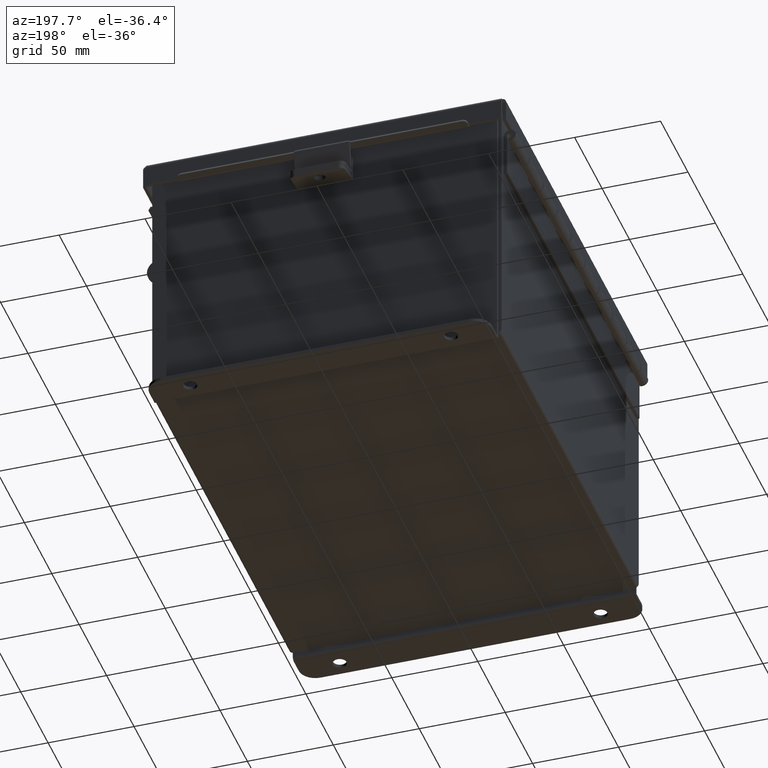
[diagram: clean part render]
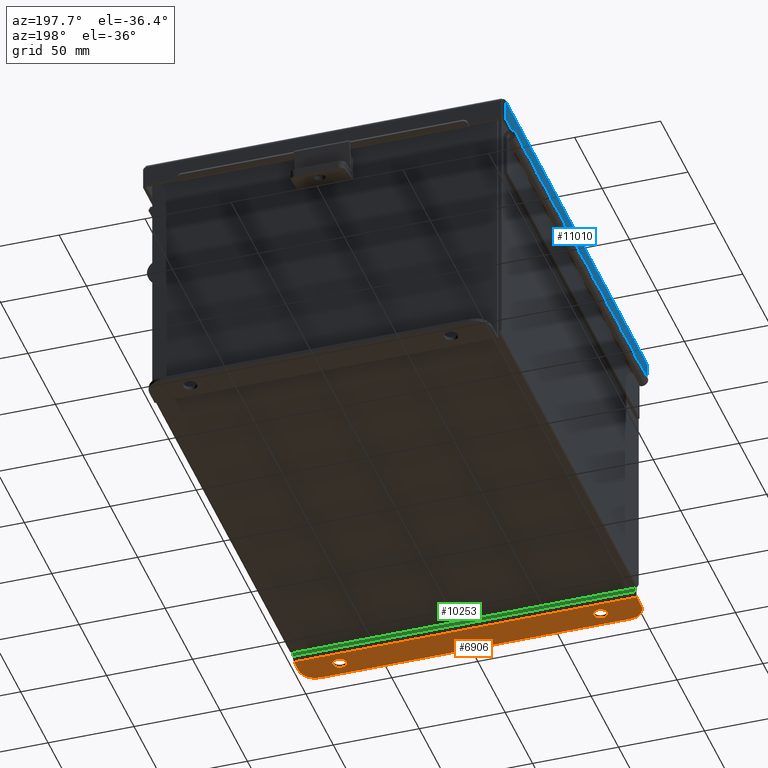
[diagram: same view with three faces highlighted in distinct colors, each labeled with its STEP entity id]
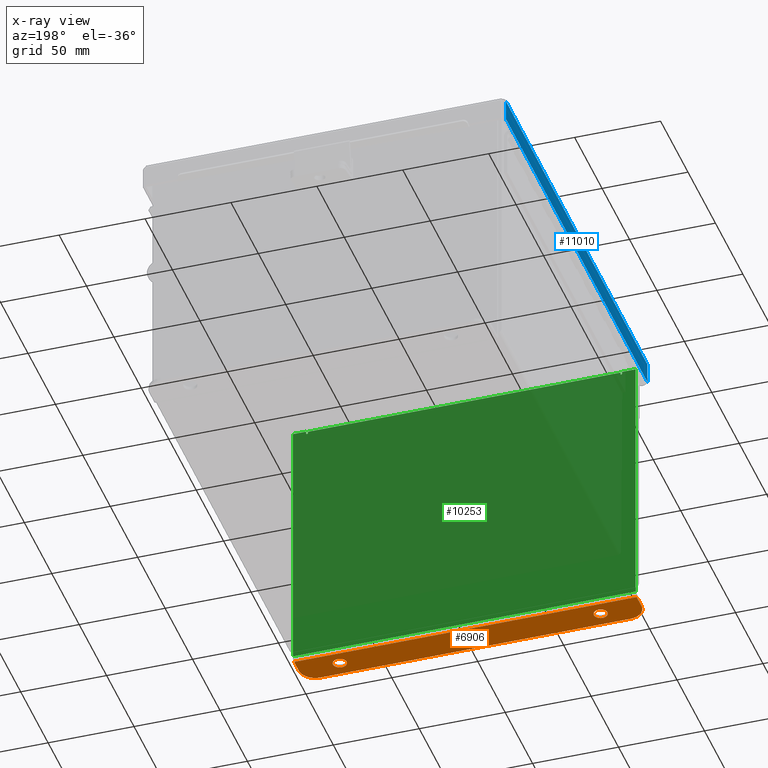
[diagram: x-ray of the same camera — body ghosted, the three highlighted faces saturated]
A machine part, auxiliary view with three faces highlighted in distinct colors.
The next image is the same camera in x-ray (body ghosted, the three faces saturated) — at least one of them is partly hidden behind the body in this view.
Their STEP definitions:

[orange] entity #6906 — the highlighted planar face has unit normal (0, -0, 1).
#19 = EDGE_CURVE ( 'NONE', #3000, #13862, #12096, .T. ) ;
#109 = ORIENTED_EDGE ( 'NONE', *, *, #398, .T. ) ;
#305 = AXIS2_PLACEMENT_3D ( 'NONE', #8198, #11722, #3020 ) ;
#398 = EDGE_CURVE ( 'NONE', #6557, #16007, #951, .T. ) ;
#450 = DIRECTION ( 'NONE',  ( 0.0000000000000000000, 1.000000000000000000, -3.502369222646487000E-015 ) ) ;
#629 = FACE_BOUND ( 'NONE', #6008, .T. ) ;
#871 = CARTESIAN_POINT ( 'NONE',  ( 0.0000000000000000000, -1.092739197465705300E-014, -3.187000000000000300 ) ) ;
#951 = CIRCLE ( 'NONE', #305, 0.3750000000000000600 ) ;
#1047 = FACE_BOUND ( 'NONE', #11344, .T. ) ;
#1088 = DIRECTION ( 'NONE',  ( 0.0000000000000000000, -3.362274453740631800E-015, -1.000000000000000000 ) ) ;
#1296 = CARTESIAN_POINT ( 'NONE',  ( 2.987799999999998700, 0.3627999999999997300, -3.187000000000001200 ) ) ;
#1355 = VECTOR ( 'NONE', #9045, 39.37007874015748100 ) ;
#1389 = CIRCLE ( 'NONE', #9067, 0.1560000000000001900 ) ;
#1468 = ORIENTED_EDGE ( 'NONE', *, *, #2308, .T. ) ;
#1633 = DIRECTION ( 'NONE',  ( -4.919856193148104900E-031, -1.000000000000000000, 3.702694488566362300E-015 ) ) ;
#1635 = VECTOR ( 'NONE', #6424, 39.37007874015748100 ) ;
#1965 = VECTOR ( 'NONE', #14813, 39.37007874015748100 ) ;
#2087 = CARTESIAN_POINT ( 'NONE',  ( -3.925300000000000900, -1.202013117212275700E-014, -3.187000000000000300 ) ) ;
#2308 = EDGE_CURVE ( 'NONE', #7686, #14004, #10499, .T. ) ;
#2520 = VERTEX_POINT ( 'NONE', #12690 ) ;
#2575 = DIRECTION ( 'NONE',  ( 0.0000000000000000000, 1.000000000000000000, -3.502369222646487000E-015 ) ) ;
#2925 = CIRCLE ( 'NONE', #8851, 0.1560000000000001900 ) ;
#3000 = VERTEX_POINT ( 'NONE', #11953 ) ;
#3020 = DIRECTION ( 'NONE',  ( 0.0000000000000000000, -1.000000000000000000, 4.370956789862820400E-015 ) ) ;
#3149 = CARTESIAN_POINT ( 'NONE',  ( -3.550300000000000500, 0.7378000000000000100, -3.187000000000002900 ) ) ;
#3322 = CARTESIAN_POINT ( 'NONE',  ( -2.987800000000000900, 0.3627999999999997300, -3.187000000000001200 ) ) ;
#3398 = EDGE_CURVE ( 'NONE', #10122, #2520, #2925, .T. ) ;
#3753 = CARTESIAN_POINT ( 'NONE',  ( 2.987799999999998700, 0.3627999999999997300, -3.187000000000001200 ) ) ;
#4162 = VERTEX_POINT ( 'NONE', #14536 ) ;
#4353 = EDGE_CURVE ( 'NONE', #14004, #6557, #8275, .T. ) ;
#4494 = VECTOR ( 'NONE', #8768, 39.37007874015748100 ) ;
#4535 = DIRECTION ( 'NONE',  ( -0.0000000000000000000, -3.702694488566362300E-015, -1.000000000000000000 ) ) ;
#4623 = DIRECTION ( 'NONE',  ( 0.0000000000000000000, 1.000000000000000000, -3.502369222646487000E-015 ) ) ;
#4646 = EDGE_LOOP ( 'NONE', ( #10128, #1468, #13133, #109, #9670, #10876 ) ) ;
#5415 = DIRECTION ( 'NONE',  ( 0.0000000000000000000, 3.702694488566362300E-015, 1.000000000000000000 ) ) ;
#5801 = PLANE ( 'NONE',  #10982 ) ;
#6008 = EDGE_LOOP ( 'NONE', ( #12423, #6381 ) ) ;
#6360 = CARTESIAN_POINT ( 'NONE',  ( -3.925300000000000900, 0.3627999999999997300, -3.187000000000001200 ) ) ;
#6381 = ORIENTED_EDGE ( 'NONE', *, *, #9598, .F. ) ;
#6424 = DIRECTION ( 'NONE',  ( -4.919856193148104900E-031, -1.000000000000000000, 3.702694488566362300E-015 ) ) ;
#6557 = VERTEX_POINT ( 'NONE', #14460 ) ;
#6906 = ADVANCED_FACE ( 'NONE', ( #1047, #629, #13772 ), #5801, .F. ) ;
#7464 = VERTEX_POINT ( 'NONE', #10998 ) ;
#7686 = VERTEX_POINT ( 'NONE', #6360 ) ;
#7704 = EDGE_CURVE ( 'NONE', #16007, #7464, #15561, .T. ) ;
#8198 = CARTESIAN_POINT ( 'NONE',  ( 3.550299999999998700, 0.3627999999999997300, -3.187000000000001200 ) ) ;
#8275 = LINE ( 'NONE', #9403, #4494 ) ;
#8579 = DIRECTION ( 'NONE',  ( 0.0000000000000000000, -3.362274453740631800E-015, -1.000000000000000000 ) ) ;
#8743 = LINE ( 'NONE', #2087, #1965 ) ;
#8768 = DIRECTION ( 'NONE',  ( 1.000000000000000000, 4.910036603141682400E-031, 0.0000000000000000000 ) ) ;
#8851 = AXIS2_PLACEMENT_3D ( 'NONE', #3753, #1088, #15812 ) ;
#8940 = DIRECTION ( 'NONE',  ( 0.0000000000000000000, -1.000000000000000000, 4.370956789862820400E-015 ) ) ;
#8983 = CARTESIAN_POINT ( 'NONE',  ( 3.925299999999998700, -1.092739197465705300E-014, -3.187000000000000300 ) ) ;
#9045 = DIRECTION ( 'NONE',  ( 1.000000000000000000, 4.910036603141682400E-031, -0.0000000000000000000 ) ) ;
#9067 = AXIS2_PLACEMENT_3D ( 'NONE', #3322, #12204, #4623 ) ;
#9175 = AXIS2_PLACEMENT_3D ( 'NONE', #1296, #10182, #2575 ) ;
#9403 = CARTESIAN_POINT ( 'NONE',  ( -2.035385365534024800E-024, 0.7378000000000000100, -3.187000000000002900 ) ) ;
#9598 = EDGE_CURVE ( 'NONE', #2520, #10122, #9758, .T. ) ;
#9670 = ORIENTED_EDGE ( 'NONE', *, *, #7704, .T. ) ;
#9758 = CIRCLE ( 'NONE', #9175, 0.1560000000000001900 ) ;
#10122 = VERTEX_POINT ( 'NONE', #13507 ) ;
#10128 = ORIENTED_EDGE ( 'NONE', *, *, #14673, .T. ) ;
#10131 = CARTESIAN_POINT ( 'NONE',  ( -3.550300000000000500, 0.3627999999999997300, -3.187000000000001200 ) ) ;
#10182 = DIRECTION ( 'NONE',  ( 0.0000000000000000000, -3.362274453740631800E-015, -1.000000000000000000 ) ) ;
#10241 = CARTESIAN_POINT ( 'NONE',  ( 3.925299999999998700, 0.3627999999999997300, -3.187000000000001200 ) ) ;
#10438 = EDGE_CURVE ( 'NONE', #13862, #3000, #1389, .T. ) ;
#10499 = CIRCLE ( 'NONE', #11780, 0.3750000000000000600 ) ;
#10876 = ORIENTED_EDGE ( 'NONE', *, *, #11421, .F. ) ;
#10982 = AXIS2_PLACEMENT_3D ( 'NONE', #871, #5415, #1633 ) ;
#10998 = CARTESIAN_POINT ( 'NONE',  ( 3.925299999999998700, 0.01300000000000010700, -3.187000000000000300 ) ) ;
#11344 = EDGE_LOOP ( 'NONE', ( #13375, #15891 ) ) ;
#11421 = EDGE_CURVE ( 'NONE', #4162, #7464, #14876, .T. ) ;
#11722 = DIRECTION ( 'NONE',  ( -0.0000000000000000000, -3.702694488566362300E-015, -1.000000000000000000 ) ) ;
#11780 = AXIS2_PLACEMENT_3D ( 'NONE', #10131, #4535, #8940 ) ;
#11953 = CARTESIAN_POINT ( 'NONE',  ( -2.987800000000000900, 0.2067999999999996000, -3.187000000000000700 ) ) ;
#12096 = CIRCLE ( 'NONE', #13747, 0.1560000000000001900 ) ;
#12204 = DIRECTION ( 'NONE',  ( 0.0000000000000000000, -3.362274453740631800E-015, -1.000000000000000000 ) ) ;
#12423 = ORIENTED_EDGE ( 'NONE', *, *, #3398, .F. ) ;
#12690 = CARTESIAN_POINT ( 'NONE',  ( 2.987799999999998700, 0.2067999999999996000, -3.187000000000000700 ) ) ;
#13093 = CARTESIAN_POINT ( 'NONE',  ( -2.987800000000000900, 0.5187999999999999300, -3.187000000000001600 ) ) ;
#13133 = ORIENTED_EDGE ( 'NONE', *, *, #4353, .T. ) ;
#13375 = ORIENTED_EDGE ( 'NONE', *, *, #10438, .F. ) ;
#13507 = CARTESIAN_POINT ( 'NONE',  ( 2.987799999999998700, 0.5187999999999999300, -3.187000000000001600 ) ) ;
#13747 = AXIS2_PLACEMENT_3D ( 'NONE', #14829, #8579, #450 ) ;
#13772 = FACE_OUTER_BOUND ( 'NONE', #4646, .T. ) ;
#13862 = VERTEX_POINT ( 'NONE', #13093 ) ;
#14004 = VERTEX_POINT ( 'NONE', #3149 ) ;
#14138 = CARTESIAN_POINT ( 'NONE',  ( 3.925299999999998700, 0.01300000000000120000, -3.187000000000000300 ) ) ;
#14460 = CARTESIAN_POINT ( 'NONE',  ( 3.550299999999998700, 0.7378000000000000100, -3.187000000000002900 ) ) ;
#14536 = CARTESIAN_POINT ( 'NONE',  ( -3.925300000000000900, 0.01300000000000010700, -3.187000000000000300 ) ) ;
#14673 = EDGE_CURVE ( 'NONE', #4162, #7686, #8743, .T. ) ;
#14813 = DIRECTION ( 'NONE',  ( 4.919856193148104900E-031, 1.000000000000000000, -3.702694488566362300E-015 ) ) ;
#14829 = CARTESIAN_POINT ( 'NONE',  ( -2.987800000000000900, 0.3627999999999997300, -3.187000000000001200 ) ) ;
#14876 = LINE ( 'NONE', #14138, #1355 ) ;
#15561 = LINE ( 'NONE', #8983, #1635 ) ;
#15812 = DIRECTION ( 'NONE',  ( 0.0000000000000000000, 1.000000000000000000, -3.502369222646487000E-015 ) ) ;
#15891 = ORIENTED_EDGE ( 'NONE', *, *, #19, .F. ) ;
#16007 = VERTEX_POINT ( 'NONE', #10241 ) ;

[blue] entity #11010 — the highlighted planar face has unit normal (1, -0, 0).
#419 = AXIS2_PLACEMENT_3D ( 'NONE', #15827, #10756, #3142 ) ;
#1876 = PLANE ( 'NONE',  #419 ) ;
#2239 = CARTESIAN_POINT ( 'NONE',  ( 4.156250000000002700, -5.074478932188135600, 0.4872999999999997300 ) ) ;
#2701 = EDGE_LOOP ( 'NONE', ( #5383, #12702, #9073, #8243 ) ) ;
#3021 = CARTESIAN_POINT ( 'NONE',  ( 4.156250000000000900, 5.074478932188133800, -1.424100231638560100E-014 ) ) ;
#3142 = DIRECTION ( 'NONE',  ( 3.363654414526078100E-015, 0.0000000000000000000, 1.000000000000000000 ) ) ;
#3155 = FACE_OUTER_BOUND ( 'NONE', #2701, .T. ) ;
#3964 = CARTESIAN_POINT ( 'NONE',  ( 4.156250000000002700, 5.074478932188133800, 0.4872999999999997300 ) ) ;
#4355 = CARTESIAN_POINT ( 'NONE',  ( 4.156250000000000900, -5.074478932188135600, -2.512649847650986200E-016 ) ) ;
#4540 = VECTOR ( 'NONE', #5647, 39.37007874015748100 ) ;
#4651 = DIRECTION ( 'NONE',  ( 0.0000000000000000000, -1.000000000000000000, 0.0000000000000000000 ) ) ;
#5383 = ORIENTED_EDGE ( 'NONE', *, *, #15184, .F. ) ;
#5519 = EDGE_CURVE ( 'NONE', #6325, #7500, #6261, .T. ) ;
#5647 = DIRECTION ( 'NONE',  ( 3.363654414526078100E-015, -0.0000000000000000000, 1.000000000000000000 ) ) ;
#6261 = LINE ( 'NONE', #8116, #9239 ) ;
#6325 = VERTEX_POINT ( 'NONE', #3964 ) ;
#7014 = EDGE_CURVE ( 'NONE', #12463, #6325, #16375, .T. ) ;
#7500 = VERTEX_POINT ( 'NONE', #2239 ) ;
#8116 = CARTESIAN_POINT ( 'NONE',  ( 4.156250000000002700, 0.0000000000000000000, 0.4872999999999997300 ) ) ;
#8243 = ORIENTED_EDGE ( 'NONE', *, *, #15219, .F. ) ;
#8312 = LINE ( 'NONE', #4355, #4540 ) ;
#8682 = VERTEX_POINT ( 'NONE', #8727 ) ;
#8727 = CARTESIAN_POINT ( 'NONE',  ( 4.156250000000000900, -5.074478932188135600, 0.01299999999999958700 ) ) ;
#9073 = ORIENTED_EDGE ( 'NONE', *, *, #5519, .T. ) ;
#9239 = VECTOR ( 'NONE', #4651, 39.37007874015748100 ) ;
#9622 = VECTOR ( 'NONE', #13276, 39.37007874015748100 ) ;
#10756 = DIRECTION ( 'NONE',  ( -1.000000000000000000, 0.0000000000000000000, 3.363654414526078100E-015 ) ) ;
#11010 = ADVANCED_FACE ( 'NONE', ( #3155 ), #1876, .F. ) ;
#12072 = VECTOR ( 'NONE', #13140, 39.37007874015748100 ) ;
#12199 = CARTESIAN_POINT ( 'NONE',  ( 4.156250000000000900, 5.074478932188133800, 0.01299999999999932100 ) ) ;
#12463 = VERTEX_POINT ( 'NONE', #12199 ) ;
#12702 = ORIENTED_EDGE ( 'NONE', *, *, #7014, .T. ) ;
#13140 = DIRECTION ( 'NONE',  ( 1.782107648718160300E-031, -1.000000000000000000, 5.298129442257967200E-017 ) ) ;
#13276 = DIRECTION ( 'NONE',  ( 3.363654414526078100E-015, 0.0000000000000000000, 1.000000000000000000 ) ) ;
#13681 = LINE ( 'NONE', #15650, #12072 ) ;
#15184 = EDGE_CURVE ( 'NONE', #12463, #8682, #13681, .T. ) ;
#15219 = EDGE_CURVE ( 'NONE', #8682, #7500, #8312, .T. ) ;
#15650 = CARTESIAN_POINT ( 'NONE',  ( 4.156250000000000900, -5.156250000000000900, 0.01299999999999986400 ) ) ;
#15827 = CARTESIAN_POINT ( 'NONE',  ( 4.156250000000000900, 0.0000000000000000000, -1.424100231638560100E-014 ) ) ;
#16375 = LINE ( 'NONE', #3021, #9622 ) ;

[green] entity #10253 — the highlighted planar face has unit normal (-0, 1, -0).
#60 = CARTESIAN_POINT ( 'NONE',  ( 3.582299999999998700, -0.07469999999999142600, 2.912299999999999200 ) ) ;
#96 = DIRECTION ( 'NONE',  ( 0.0000000000000000000, 0.0000000000000000000, -1.000000000000000000 ) ) ;
#586 = VERTEX_POINT ( 'NONE', #9967 ) ;
#820 = ORIENTED_EDGE ( 'NONE', *, *, #13272, .F. ) ;
#964 = LINE ( 'NONE', #11852, #4357 ) ;
#1034 = DIRECTION ( 'NONE',  ( 1.000000000000000000, 4.910036603141682400E-031, -0.0000000000000000000 ) ) ;
#1177 = DIRECTION ( 'NONE',  ( 0.0000000000000000000, 0.0000000000000000000, 1.000000000000000000 ) ) ;
#1280 = CARTESIAN_POINT ( 'NONE',  ( -3.619650000000000900, -0.07469999999999907300, 2.925299999999998200 ) ) ;
#1329 = AXIS2_PLACEMENT_3D ( 'NONE', #15339, #7740, #96 ) ;
#1471 = DIRECTION ( 'NONE',  ( -4.910036603141682400E-031, -1.000000000000000000, 0.0000000000000000000 ) ) ;
#1599 = VERTEX_POINT ( 'NONE', #6955 ) ;
#1713 = DIRECTION ( 'NONE',  ( 1.000000000000000000, 4.910036603141682400E-031, 0.0000000000000000000 ) ) ;
#1740 = VERTEX_POINT ( 'NONE', #4495 ) ;
#1744 = ORIENTED_EDGE ( 'NONE', *, *, #4427, .F. ) ;
#2154 = LINE ( 'NONE', #3910, #4746 ) ;
#2645 = CARTESIAN_POINT ( 'NONE',  ( -3.925300000000000900, -0.07470000000000015500, -3.099299999999999900 ) ) ;
#2765 = VERTEX_POINT ( 'NONE', #2645 ) ;
#3277 = ORIENTED_EDGE ( 'NONE', *, *, #4368, .F. ) ;
#3298 = CARTESIAN_POINT ( 'NONE',  ( -3.619650000000000900, -0.07470000000000015500, 2.874949999999999200 ) ) ;
#3300 = EDGE_CURVE ( 'NONE', #1740, #3737, #11271, .T. ) ;
#3388 = LINE ( 'NONE', #13041, #4518 ) ;
#3521 = VERTEX_POINT ( 'NONE', #8371 ) ;
#3539 = ORIENTED_EDGE ( 'NONE', *, *, #10280, .T. ) ;
#3666 = ORIENTED_EDGE ( 'NONE', *, *, #14823, .F. ) ;
#3718 = AXIS2_PLACEMENT_3D ( 'NONE', #5482, #1471, #4773 ) ;
#3736 = CARTESIAN_POINT ( 'NONE',  ( -3.582300000000000900, -0.07470000000000015500, 2.912299999999998300 ) ) ;
#3737 = VERTEX_POINT ( 'NONE', #7988 ) ;
#3782 = FACE_OUTER_BOUND ( 'NONE', #12497, .T. ) ;
#3910 = CARTESIAN_POINT ( 'NONE',  ( 3.582299999999998700, -0.07469999999999033000, 2.912299999999999200 ) ) ;
#3956 = VERTEX_POINT ( 'NONE', #3298 ) ;
#4107 = PLANE ( 'NONE',  #9401 ) ;
#4297 = CARTESIAN_POINT ( 'NONE',  ( 3.619649999999998700, -0.07469999999999033000, 2.874949999999999200 ) ) ;
#4357 = VECTOR ( 'NONE', #1713, 39.37007874015748100 ) ;
#4368 = EDGE_CURVE ( 'NONE', #1599, #3521, #14226, .T. ) ;
#4391 = CARTESIAN_POINT ( 'NONE',  ( 3.619649999999999600, -0.07469999999999142600, 2.925300000000000500 ) ) ;
#4427 = EDGE_CURVE ( 'NONE', #5303, #9570, #10435, .T. ) ;
#4495 = CARTESIAN_POINT ( 'NONE',  ( 3.582299999999998700, -0.07469999999999142600, 2.874949999999999200 ) ) ;
#4518 = VECTOR ( 'NONE', #9202, 39.37007874015748100 ) ;
#4746 = VECTOR ( 'NONE', #12784, 39.37007874015748100 ) ;
#4773 = DIRECTION ( 'NONE',  ( 0.0000000000000000000, 0.0000000000000000000, -1.000000000000000000 ) ) ;
#4938 = VECTOR ( 'NONE', #14408, 39.37007874015748100 ) ;
#5087 = CARTESIAN_POINT ( 'NONE',  ( 3.925299999999998700, -0.07469999999999142600, 2.925300000000001800 ) ) ;
#5303 = VERTEX_POINT ( 'NONE', #10331 ) ;
#5482 = CARTESIAN_POINT ( 'NONE',  ( 3.600974999999998700, -0.07469999999999033000, 2.874949999999999200 ) ) ;
#6227 = VECTOR ( 'NONE', #1177, 39.37007874015748100 ) ;
#6303 = VERTEX_POINT ( 'NONE', #60 ) ;
#6685 = CARTESIAN_POINT ( 'NONE',  ( 0.0000000000000000000, -0.07470000000000015500, 0.0000000000000000000 ) ) ;
#6800 = ORIENTED_EDGE ( 'NONE', *, *, #7640, .F. ) ;
#6955 = CARTESIAN_POINT ( 'NONE',  ( 3.925299999999998700, -0.07469999999999142600, 2.925300000000001800 ) ) ;
#7156 = LINE ( 'NONE', #9980, #7544 ) ;
#7544 = VECTOR ( 'NONE', #1034, 39.37007874015748100 ) ;
#7640 = EDGE_CURVE ( 'NONE', #2765, #586, #16357, .T. ) ;
#7717 = CIRCLE ( 'NONE', #1329, 0.01867500000000003900 ) ;
#7740 = DIRECTION ( 'NONE',  ( -4.910036603141682400E-031, -1.000000000000000000, 0.0000000000000000000 ) ) ;
#7968 = DIRECTION ( 'NONE',  ( 0.0000000000000000000, 0.0000000000000000000, -1.000000000000000000 ) ) ;
#7988 = CARTESIAN_POINT ( 'NONE',  ( 3.619649999999998700, -0.07469999999999142600, 2.874949999999999200 ) ) ;
#8253 = ORIENTED_EDGE ( 'NONE', *, *, #15610, .F. ) ;
#8283 = VECTOR ( 'NONE', #15574, 39.37007874015748100 ) ;
#8371 = CARTESIAN_POINT ( 'NONE',  ( 3.925299999999998700, -0.07470000000000015500, -3.099299999999999900 ) ) ;
#8539 = DIRECTION ( 'NONE',  ( 0.0000000000000000000, 0.0000000000000000000, -1.000000000000000000 ) ) ;
#9202 = DIRECTION ( 'NONE',  ( 1.000000000000000000, 4.910036603141682400E-031, -0.0000000000000000000 ) ) ;
#9238 = CARTESIAN_POINT ( 'NONE',  ( -3.619650000000000900, -0.07470000000000015500, 2.925299999999998200 ) ) ;
#9240 = CARTESIAN_POINT ( 'NONE',  ( -3.925300000000000900, -0.07470000000000015500, 2.925299999999999600 ) ) ;
#9343 = VECTOR ( 'NONE', #10171, 39.37007874015748100 ) ;
#9401 = AXIS2_PLACEMENT_3D ( 'NONE', #6685, #15576, #7968 ) ;
#9570 = VERTEX_POINT ( 'NONE', #3736 ) ;
#9967 = CARTESIAN_POINT ( 'NONE',  ( -3.925300000000000900, -0.07470000000000015500, 2.925299999999999600 ) ) ;
#9980 = CARTESIAN_POINT ( 'NONE',  ( -3.582300000000000900, -0.07469999999999907300, 2.912299999999998300 ) ) ;
#10045 = VECTOR ( 'NONE', #13572, 39.37007874015748100 ) ;
#10056 = CARTESIAN_POINT ( 'NONE',  ( -3.925300000000000900, -0.07470000000000015500, 2.925299999999999600 ) ) ;
#10171 = DIRECTION ( 'NONE',  ( 0.0000000000000000000, 1.186875369640613200E-014, -1.000000000000000000 ) ) ;
#10253 = ADVANCED_FACE ( 'NONE', ( #3782 ), #4107, .T. ) ;
#10280 = EDGE_CURVE ( 'NONE', #2765, #3521, #3388, .T. ) ;
#10331 = CARTESIAN_POINT ( 'NONE',  ( -3.582300000000000900, -0.07470000000000015500, 2.874949999999999200 ) ) ;
#10435 = LINE ( 'NONE', #13927, #10045 ) ;
#10827 = VECTOR ( 'NONE', #8539, 39.37007874015748100 ) ;
#10918 = EDGE_CURVE ( 'NONE', #586, #12260, #964, .T. ) ;
#11271 = CIRCLE ( 'NONE', #3718, 0.01867500000000003900 ) ;
#11852 = CARTESIAN_POINT ( 'NONE',  ( -3.925300000000000900, -0.07470000000000015500, 2.925299999999999600 ) ) ;
#12048 = EDGE_CURVE ( 'NONE', #12260, #3956, #16082, .T. ) ;
#12260 = VERTEX_POINT ( 'NONE', #9238 ) ;
#12476 = LINE ( 'NONE', #4297, #4938 ) ;
#12497 = EDGE_LOOP ( 'NONE', ( #8253, #12816, #15898, #6800, #3539, #3277, #820, #12696, #15614, #12700, #3666, #1744 ) ) ;
#12696 = ORIENTED_EDGE ( 'NONE', *, *, #15202, .F. ) ;
#12700 = ORIENTED_EDGE ( 'NONE', *, *, #14967, .F. ) ;
#12784 = DIRECTION ( 'NONE',  ( 0.0000000000000000000, 0.0000000000000000000, -1.000000000000000000 ) ) ;
#12816 = ORIENTED_EDGE ( 'NONE', *, *, #12048, .F. ) ;
#13041 = CARTESIAN_POINT ( 'NONE',  ( -3.925300000000000900, -0.07470000000000015500, -3.099299999999999900 ) ) ;
#13272 = EDGE_CURVE ( 'NONE', #14581, #1599, #15037, .T. ) ;
#13572 = DIRECTION ( 'NONE',  ( 0.0000000000000000000, 0.0000000000000000000, 1.000000000000000000 ) ) ;
#13927 = CARTESIAN_POINT ( 'NONE',  ( -3.582300000000000900, -0.07469999999999907300, 2.874949999999999200 ) ) ;
#14226 = LINE ( 'NONE', #5087, #10827 ) ;
#14408 = DIRECTION ( 'NONE',  ( 2.170286390199978800E-014, -1.186875369640613200E-014, 1.000000000000000000 ) ) ;
#14581 = VERTEX_POINT ( 'NONE', #4391 ) ;
#14823 = EDGE_CURVE ( 'NONE', #9570, #6303, #7156, .T. ) ;
#14967 = EDGE_CURVE ( 'NONE', #6303, #1740, #2154, .T. ) ;
#15037 = LINE ( 'NONE', #9240, #8283 ) ;
#15202 = EDGE_CURVE ( 'NONE', #3737, #14581, #12476, .T. ) ;
#15339 = CARTESIAN_POINT ( 'NONE',  ( -3.600975000000000900, -0.07469999999999907300, 2.874949999999999200 ) ) ;
#15574 = DIRECTION ( 'NONE',  ( 1.000000000000000000, 4.910036603141682400E-031, 0.0000000000000000000 ) ) ;
#15576 = DIRECTION ( 'NONE',  ( -4.910036603141682400E-031, -1.000000000000000000, -0.0000000000000000000 ) ) ;
#15610 = EDGE_CURVE ( 'NONE', #3956, #5303, #7717, .T. ) ;
#15614 = ORIENTED_EDGE ( 'NONE', *, *, #3300, .F. ) ;
#15898 = ORIENTED_EDGE ( 'NONE', *, *, #10918, .F. ) ;
#16082 = LINE ( 'NONE', #1280, #9343 ) ;
#16357 = LINE ( 'NONE', #10056, #6227 ) ;